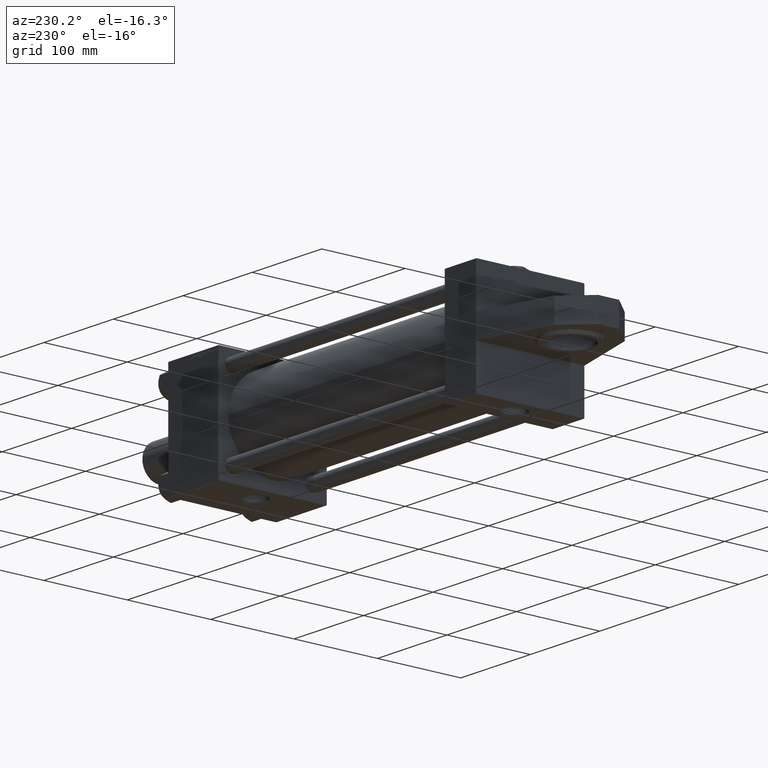
[diagram: clean part render]
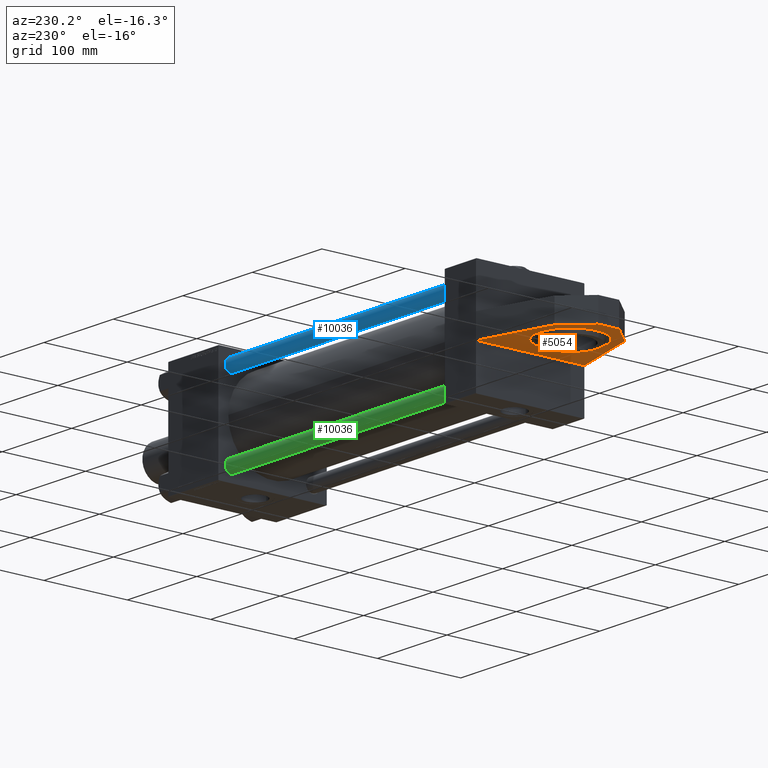
[diagram: same view with three faces highlighted in distinct colors, each labeled with its STEP entity id]
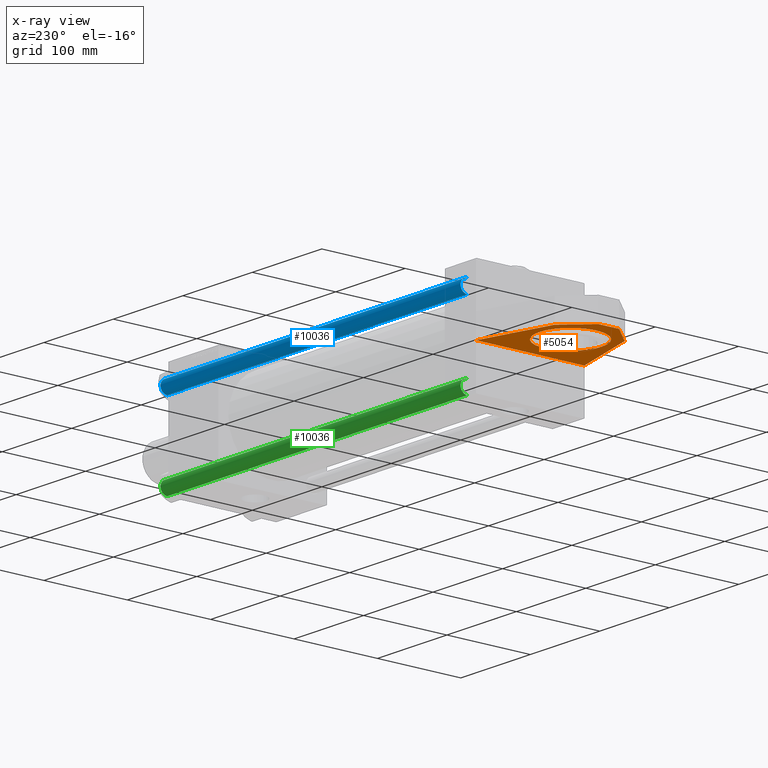
[diagram: x-ray of the same camera — body ghosted, the three highlighted faces saturated]
A machine part, auxiliary view with three faces highlighted in distinct colors.
The next image is the same camera in x-ray (body ghosted, the three faces saturated) — at least one of them is partly hidden behind the body in this view.
Their STEP definitions:

[orange] entity #5054 — the highlighted planar face has unit normal (0, 0, 1).
#140 = LINE ( 'NONE', #28910, #52553 ) ;
#2548 = CARTESIAN_POINT ( 'NONE',  ( 0.000000000000000000, -14.00000000000000000, 0.000000000000000000 ) ) ;
#2977 = DIRECTION ( 'NONE',  ( 0.000000000000000000, 0.000000000000000000, 1.000000000000000000 ) ) ;
#3297 = CARTESIAN_POINT ( 'NONE',  ( -85.49999999999998579, -14.00000000000000000, 42.09034404713864319 ) ) ;
#5054 = ADVANCED_FACE ( 'NONE', ( #51487, #48248 ), #27037, .F. ) ;
#6328 = DIRECTION ( 'NONE',  ( -0.000000000000000000, 1.000000000000000000, 0.000000000000000000 ) ) ;
#8339 = LINE ( 'NONE', #39885, #20046 ) ;
#8679 = VECTOR ( 'NONE', #47832, 1000.000000000000000 ) ;
#9869 = ORIENTED_EDGE ( 'NONE', *, *, #18705, .F. ) ;
#10023 = ORIENTED_EDGE ( 'NONE', *, *, #23966, .F. ) ;
#13698 = CARTESIAN_POINT ( 'NONE',  ( -85.49999999999998579, -14.00000000000000000, -42.09034404713862898 ) ) ;
#14008 = EDGE_CURVE ( 'NONE', #50565, #46531, #15036, .T. ) ;
#15036 = LINE ( 'NONE', #31447, #8679 ) ;
#15134 = DIRECTION ( 'NONE',  ( 0.000000000000000000, 1.000000000000000000, 0.000000000000000000 ) ) ;
#15958 = VERTEX_POINT ( 'NONE', #19701 ) ;
#16655 = EDGE_CURVE ( 'NONE', #15958, #43265, #140, .T. ) ;
#17092 = EDGE_CURVE ( 'NONE', #33185, #21676, #47385, .T. ) ;
#17175 = CARTESIAN_POINT ( 'NONE',  ( 0.000000000000000000, -13.99999999999999822, -65.00000000000000000 ) ) ;
#17329 = EDGE_CURVE ( 'NONE', #46531, #37789, #45695, .T. ) ;
#17754 = VERTEX_POINT ( 'NONE', #44455 ) ;
#18262 = CARTESIAN_POINT ( 'NONE',  ( -85.49999999999998579, -14.00000000000000000, -42.09034404713862898 ) ) ;
#18705 = EDGE_CURVE ( 'NONE', #17754, #50565, #23479, .T. ) ;
#19572 = EDGE_CURVE ( 'NONE', #21676, #33185, #26047, .T. ) ;
#19701 = CARTESIAN_POINT ( 'NONE',  ( -112.9999999999999858, -14.00000000000000000, -12.49999999999999289 ) ) ;
#20046 = VECTOR ( 'NONE', #23230, 1000.000000000000114 ) ;
#20978 = DIRECTION ( 'NONE',  ( -0.9659258262890670910, -0.000000000000000000, 0.2588190451025247918 ) ) ;
#21676 = VERTEX_POINT ( 'NONE', #49508 ) ;
#23066 = AXIS2_PLACEMENT_3D ( 'NONE', #2548, #6328, #47720 ) ;
#23230 = DIRECTION ( 'NONE',  ( 0.6807601282440177703, 0.000000000000000000, 0.7325064148478075410 ) ) ;
#23479 = LINE ( 'NONE', #3297, #32035 ) ;
#23966 = EDGE_CURVE ( 'NONE', #43265, #17754, #8339, .T. ) ;
#24214 = AXIS2_PLACEMENT_3D ( 'NONE', #43845, #39287, #2977 ) ;
#26047 = CIRCLE ( 'NONE', #35483, 37.50000000000000711 ) ;
#27037 = PLANE ( 'NONE',  #23066 ) ;
#27550 = DIRECTION ( 'NONE',  ( -0.6807601282440177703, -0.000000000000000000, 0.7325064148478075410 ) ) ;
#28910 = CARTESIAN_POINT ( 'NONE',  ( -112.9999999999999858, -14.00000000000000000, -12.49999999999999289 ) ) ;
#29166 = DIRECTION ( 'NONE',  ( 0.000000000000000000, 0.000000000000000000, 1.000000000000000000 ) ) ;
#31111 = VECTOR ( 'NONE', #20978, 1000.000000000000227 ) ;
#31447 = CARTESIAN_POINT ( 'NONE',  ( 0.000000000000000000, -14.00000000000000000, 65.00000000000000000 ) ) ;
#31811 = DIRECTION ( 'NONE',  ( 0.000000000000000000, 0.000000000000000000, 1.000000000000000000 ) ) ;
#31839 = EDGE_LOOP ( 'NONE', ( #10023, #43196, #34183, #37941, #44198, #9869 ) ) ;
#31841 = LINE ( 'NONE', #48235, #46235 ) ;
#32035 = VECTOR ( 'NONE', #32076, 1000.000000000000114 ) ;
#32076 = DIRECTION ( 'NONE',  ( 0.9659258262890672020, 0.000000000000000000, 0.2588190451025246808 ) ) ;
#33185 = VERTEX_POINT ( 'NONE', #46264 ) ;
#34183 = ORIENTED_EDGE ( 'NONE', *, *, #49430, .F. ) ;
#35483 = AXIS2_PLACEMENT_3D ( 'NONE', #40142, #15134, #31811 ) ;
#37464 = EDGE_LOOP ( 'NONE', ( #51504, #46519 ) ) ;
#37789 = VERTEX_POINT ( 'NONE', #18262 ) ;
#37941 = ORIENTED_EDGE ( 'NONE', *, *, #17329, .F. ) ;
#39287 = DIRECTION ( 'NONE',  ( 0.000000000000000000, 1.000000000000000000, 0.000000000000000000 ) ) ;
#39885 = CARTESIAN_POINT ( 'NONE',  ( -112.9999999999999858, -14.00000000000000000, 12.50000000000000711 ) ) ;
#40142 = CARTESIAN_POINT ( 'NONE',  ( -58.00000000000000000, -14.00000000000000000, 3.469446951953614189E-15 ) ) ;
#43196 = ORIENTED_EDGE ( 'NONE', *, *, #16655, .F. ) ;
#43265 = VERTEX_POINT ( 'NONE', #48131 ) ;
#43845 = CARTESIAN_POINT ( 'NONE',  ( -58.00000000000000000, -14.00000000000000000, 3.469446951953614189E-15 ) ) ;
#43881 = CARTESIAN_POINT ( 'NONE',  ( 0.000000000000000000, -14.00000000000000000, 65.00000000000000000 ) ) ;
#44198 = ORIENTED_EDGE ( 'NONE', *, *, #14008, .F. ) ;
#44455 = CARTESIAN_POINT ( 'NONE',  ( -85.49999999999998579, -14.00000000000000000, 42.09034404713864319 ) ) ;
#45695 = LINE ( 'NONE', #13698, #31111 ) ;
#46235 = VECTOR ( 'NONE', #27550, 1000.000000000000114 ) ;
#46264 = CARTESIAN_POINT ( 'NONE',  ( -57.99999999999999289, -14.00000000000000000, -37.50000000000000711 ) ) ;
#46519 = ORIENTED_EDGE ( 'NONE', *, *, #17092, .T. ) ;
#46531 = VERTEX_POINT ( 'NONE', #17175 ) ;
#47385 = CIRCLE ( 'NONE', #24214, 37.50000000000000711 ) ;
#47720 = DIRECTION ( 'NONE',  ( 0.000000000000000000, -0.000000000000000000, 1.000000000000000000 ) ) ;
#47832 = DIRECTION ( 'NONE',  ( 0.000000000000000000, 0.000000000000000000, -1.000000000000000000 ) ) ;
#48131 = CARTESIAN_POINT ( 'NONE',  ( -112.9999999999999858, -14.00000000000000000, 12.50000000000000711 ) ) ;
#48235 = CARTESIAN_POINT ( 'NONE',  ( -112.9999999999999858, -14.00000000000000000, -12.49999999999999289 ) ) ;
#48248 = FACE_OUTER_BOUND ( 'NONE', #31839, .T. ) ;
#49430 = EDGE_CURVE ( 'NONE', #37789, #15958, #31841, .T. ) ;
#49508 = CARTESIAN_POINT ( 'NONE',  ( -58.00000000000000000, -14.00000000000000000, 37.50000000000000711 ) ) ;
#50565 = VERTEX_POINT ( 'NONE', #43881 ) ;
#51487 = FACE_BOUND ( 'NONE', #37464, .T. ) ;
#51504 = ORIENTED_EDGE ( 'NONE', *, *, #19572, .T. ) ;
#52553 = VECTOR ( 'NONE', #29166, 1000.000000000000000 ) ;

[blue] entity #10036 — the highlighted cylindrical surface (edge-blend (fillet) strip) has radius 8 mm, axis along (1, 0, 0).
#926 = ORIENTED_EDGE ( 'NONE', *, *, #43375, .T. ) ;
#7151 = ORIENTED_EDGE ( 'NONE', *, *, #33716, .T. ) ;
#7790 = CARTESIAN_POINT ( 'NONE',  ( 0.000000000000000000, 0.000000000000000000, 432.5000000000001705 ) ) ;
#8203 = CYLINDRICAL_SURFACE ( 'NONE', #53176, 8.000000000000000000 ) ;
#8320 = DIRECTION ( 'NONE',  ( 0.000000000000000000, 0.000000000000000000, -1.000000000000000000 ) ) ;
#8461 = DIRECTION ( 'NONE',  ( -1.000000000000000000, 0.000000000000000000, 0.000000000000000000 ) ) ;
#8469 = VERTEX_POINT ( 'NONE', #48822 ) ;
#8849 = AXIS2_PLACEMENT_3D ( 'NONE', #35162, #47787, #14729 ) ;
#10036 = ADVANCED_FACE ( 'NONE', ( #20320 ), #8203, .T. ) ;
#10200 = DIRECTION ( 'NONE',  ( -0.000000000000000000, -0.000000000000000000, -1.000000000000000000 ) ) ;
#10669 = VERTEX_POINT ( 'NONE', #34422 ) ;
#10879 = EDGE_CURVE ( 'NONE', #22324, #36930, #25229, .T. ) ;
#13541 = AXIS2_PLACEMENT_3D ( 'NONE', #7790, #8320, #37104 ) ;
#14729 = DIRECTION ( 'NONE',  ( 1.000000000000000000, 0.000000000000000000, 0.000000000000000000 ) ) ;
#15535 = CARTESIAN_POINT ( 'NONE',  ( 8.000000000000000000, 9.797174393178823685E-16, 432.5000000000001705 ) ) ;
#20320 = FACE_OUTER_BOUND ( 'NONE', #51790, .T. ) ;
#21733 = DIRECTION ( 'NONE',  ( -0.000000000000000000, -0.000000000000000000, -1.000000000000000000 ) ) ;
#22324 = VERTEX_POINT ( 'NONE', #15535 ) ;
#22343 = ORIENTED_EDGE ( 'NONE', *, *, #48740, .F. ) ;
#24625 = DIRECTION ( 'NONE',  ( -0.000000000000000000, -0.000000000000000000, -1.000000000000000000 ) ) ;
#25229 = LINE ( 'NONE', #41876, #42895 ) ;
#28920 = CARTESIAN_POINT ( 'NONE',  ( 0.000000000000000000, 0.000000000000000000, 433.0000000000000000 ) ) ;
#32939 = CIRCLE ( 'NONE', #8849, 8.000000000000000000 ) ;
#33716 = EDGE_CURVE ( 'NONE', #36930, #10669, #32939, .T. ) ;
#34422 = CARTESIAN_POINT ( 'NONE',  ( -8.000000000000000000, 0.000000000000000000, 0.5000000000003335110 ) ) ;
#35162 = CARTESIAN_POINT ( 'NONE',  ( 0.000000000000000000, 0.000000000000000000, 0.5000000000003335110 ) ) ;
#36142 = ORIENTED_EDGE ( 'NONE', *, *, #10879, .T. ) ;
#36930 = VERTEX_POINT ( 'NONE', #45443 ) ;
#37104 = DIRECTION ( 'NONE',  ( 1.000000000000000000, 0.000000000000000000, 0.000000000000000000 ) ) ;
#38724 = CARTESIAN_POINT ( 'NONE',  ( -8.000000000000000000, 0.000000000000000000, 433.0000000000000000 ) ) ;
#41052 = VECTOR ( 'NONE', #10200, 1000.000000000000000 ) ;
#41876 = CARTESIAN_POINT ( 'NONE',  ( 8.000000000000000000, 9.797174393178823685E-16, 433.0000000000000000 ) ) ;
#42484 = LINE ( 'NONE', #38724, #41052 ) ;
#42895 = VECTOR ( 'NONE', #21733, 1000.000000000000000 ) ;
#43375 = EDGE_CURVE ( 'NONE', #8469, #22324, #46163, .T. ) ;
#45443 = CARTESIAN_POINT ( 'NONE',  ( 8.000000000000000000, 9.797174393178823685E-16, 0.5000000000003335110 ) ) ;
#46163 = CIRCLE ( 'NONE', #13541, 8.000000000000000000 ) ;
#47787 = DIRECTION ( 'NONE',  ( -0.000000000000000000, -0.000000000000000000, 1.000000000000000000 ) ) ;
#48740 = EDGE_CURVE ( 'NONE', #8469, #10669, #42484, .T. ) ;
#48822 = CARTESIAN_POINT ( 'NONE',  ( -8.000000000000000000, 0.000000000000000000, 432.5000000000001705 ) ) ;
#51790 = EDGE_LOOP ( 'NONE', ( #926, #36142, #7151, #22343 ) ) ;
#53176 = AXIS2_PLACEMENT_3D ( 'NONE', #28920, #24625, #8461 ) ;

[green] entity #10036 — the highlighted cylindrical surface (edge-blend (fillet) strip) has radius 8 mm, axis along (-1, -0, 0).
#926 = ORIENTED_EDGE ( 'NONE', *, *, #43375, .T. ) ;
#7151 = ORIENTED_EDGE ( 'NONE', *, *, #33716, .T. ) ;
#7790 = CARTESIAN_POINT ( 'NONE',  ( 0.000000000000000000, 0.000000000000000000, 432.5000000000001705 ) ) ;
#8203 = CYLINDRICAL_SURFACE ( 'NONE', #53176, 8.000000000000000000 ) ;
#8320 = DIRECTION ( 'NONE',  ( 0.000000000000000000, 0.000000000000000000, -1.000000000000000000 ) ) ;
#8461 = DIRECTION ( 'NONE',  ( -1.000000000000000000, 0.000000000000000000, 0.000000000000000000 ) ) ;
#8469 = VERTEX_POINT ( 'NONE', #48822 ) ;
#8849 = AXIS2_PLACEMENT_3D ( 'NONE', #35162, #47787, #14729 ) ;
#10036 = ADVANCED_FACE ( 'NONE', ( #20320 ), #8203, .T. ) ;
#10200 = DIRECTION ( 'NONE',  ( -0.000000000000000000, -0.000000000000000000, -1.000000000000000000 ) ) ;
#10669 = VERTEX_POINT ( 'NONE', #34422 ) ;
#10879 = EDGE_CURVE ( 'NONE', #22324, #36930, #25229, .T. ) ;
#13541 = AXIS2_PLACEMENT_3D ( 'NONE', #7790, #8320, #37104 ) ;
#14729 = DIRECTION ( 'NONE',  ( 1.000000000000000000, 0.000000000000000000, 0.000000000000000000 ) ) ;
#15535 = CARTESIAN_POINT ( 'NONE',  ( 8.000000000000000000, 9.797174393178823685E-16, 432.5000000000001705 ) ) ;
#20320 = FACE_OUTER_BOUND ( 'NONE', #51790, .T. ) ;
#21733 = DIRECTION ( 'NONE',  ( -0.000000000000000000, -0.000000000000000000, -1.000000000000000000 ) ) ;
#22324 = VERTEX_POINT ( 'NONE', #15535 ) ;
#22343 = ORIENTED_EDGE ( 'NONE', *, *, #48740, .F. ) ;
#24625 = DIRECTION ( 'NONE',  ( -0.000000000000000000, -0.000000000000000000, -1.000000000000000000 ) ) ;
#25229 = LINE ( 'NONE', #41876, #42895 ) ;
#28920 = CARTESIAN_POINT ( 'NONE',  ( 0.000000000000000000, 0.000000000000000000, 433.0000000000000000 ) ) ;
#32939 = CIRCLE ( 'NONE', #8849, 8.000000000000000000 ) ;
#33716 = EDGE_CURVE ( 'NONE', #36930, #10669, #32939, .T. ) ;
#34422 = CARTESIAN_POINT ( 'NONE',  ( -8.000000000000000000, 0.000000000000000000, 0.5000000000003335110 ) ) ;
#35162 = CARTESIAN_POINT ( 'NONE',  ( 0.000000000000000000, 0.000000000000000000, 0.5000000000003335110 ) ) ;
#36142 = ORIENTED_EDGE ( 'NONE', *, *, #10879, .T. ) ;
#36930 = VERTEX_POINT ( 'NONE', #45443 ) ;
#37104 = DIRECTION ( 'NONE',  ( 1.000000000000000000, 0.000000000000000000, 0.000000000000000000 ) ) ;
#38724 = CARTESIAN_POINT ( 'NONE',  ( -8.000000000000000000, 0.000000000000000000, 433.0000000000000000 ) ) ;
#41052 = VECTOR ( 'NONE', #10200, 1000.000000000000000 ) ;
#41876 = CARTESIAN_POINT ( 'NONE',  ( 8.000000000000000000, 9.797174393178823685E-16, 433.0000000000000000 ) ) ;
#42484 = LINE ( 'NONE', #38724, #41052 ) ;
#42895 = VECTOR ( 'NONE', #21733, 1000.000000000000000 ) ;
#43375 = EDGE_CURVE ( 'NONE', #8469, #22324, #46163, .T. ) ;
#45443 = CARTESIAN_POINT ( 'NONE',  ( 8.000000000000000000, 9.797174393178823685E-16, 0.5000000000003335110 ) ) ;
#46163 = CIRCLE ( 'NONE', #13541, 8.000000000000000000 ) ;
#47787 = DIRECTION ( 'NONE',  ( -0.000000000000000000, -0.000000000000000000, 1.000000000000000000 ) ) ;
#48740 = EDGE_CURVE ( 'NONE', #8469, #10669, #42484, .T. ) ;
#48822 = CARTESIAN_POINT ( 'NONE',  ( -8.000000000000000000, 0.000000000000000000, 432.5000000000001705 ) ) ;
#51790 = EDGE_LOOP ( 'NONE', ( #926, #36142, #7151, #22343 ) ) ;
#53176 = AXIS2_PLACEMENT_3D ( 'NONE', #28920, #24625, #8461 ) ;